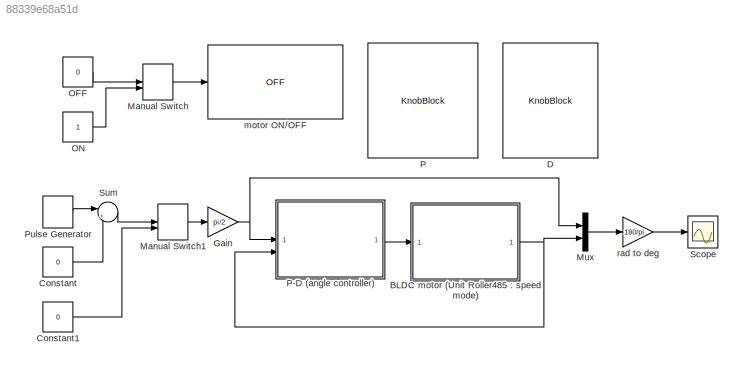
MODEL slx_88339e68a51d
KIND model
CONFIG AbsTol = auto
CONFIG EnableMultiTasking = on
CONFIG FixedStep = 0.005
CONFIG MaxStep = auto
CONFIG MinStep = auto
CONFIG RelTol = 1e-3
CONFIG SampleTimeConstraint = Unconstrained
CONFIG SolverName = ode1
CONFIG StartTime = 0.0
CONFIG StopTime = inf
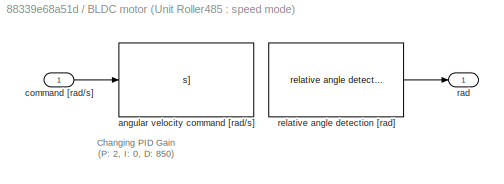
BLOCK [SubSystem] BLDC motor (Unit Roller485 : speed mode)
BLOCK [Reference] BLDC motor (Unit Roller485 : speed mode)/angular velocity command [rad//s]  REF=roller485lib/I2C Write/angular velocity command [rad//s]  (lib defined in slx_9f537789314b)
  SourceBlock = roller485lib/I2C Write/angular velocity command [rad//s]
  SourceProductName = Roller485 Library
  SourceType = angular velocity command [rad/s]
BLOCK [Inport] BLDC motor (Unit Roller485 : speed mode)/command [rad//s]
BLOCK [Outport] BLDC motor (Unit Roller485 : speed mode)/rad
BLOCK [Reference] BLDC motor (Unit Roller485 : speed mode)/relative angle detection [rad]  REF=roller485lib/I2C Read/relative angle detection [rad]  (lib defined in slx_9f537789314b)
  SourceBlock = roller485lib/I2C Read/relative angle detection [rad]
  SourceProductName = Roller485 Library
BLOCK [Constant] Constant
  Value = 0
BLOCK [Constant] Constant1
  Value = 0
BLOCK [KnobBlock] D
  LabelPosition = Hide
  NameLocation = top
  ScaleMax = 2.4
  ScaleMin = -0.8
  TickInterval = 0.8
BLOCK [Gain] Gain
  Gain = pi/2
BLOCK [ManualSwitch] Manual Switch
BLOCK [ManualSwitch] Manual Switch1
BLOCK [Mux] Mux
  DisplayOption = bar
  Inputs = 2
BLOCK [Constant] OFF
  Value = 0
BLOCK [Constant] ON
BLOCK [KnobBlock] P
  LabelPosition = Hide
  NameLocation = top
  ScaleMax = 50
  TickInterval = 10
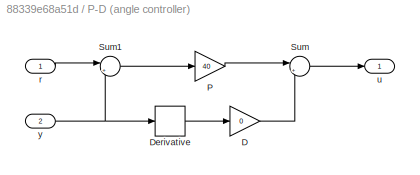
BLOCK [SubSystem] P-D (angle controller)
BLOCK [Gain] P-D (angle controller)/D
  Gain = 0
BLOCK [Derivative] P-D (angle controller)/Derivative
BLOCK [Gain] P-D (angle controller)/P
  Gain = 40
BLOCK [Sum] P-D (angle controller)/Sum
  Inputs = |+-
BLOCK [Sum] P-D (angle controller)/Sum1
  Inputs = |+-
BLOCK [Inport] P-D (angle controller)/r
BLOCK [Outport] P-D (angle controller)/u
BLOCK [Inport] P-D (angle controller)/y
  Port = 2
BLOCK [DiscretePulseGenerator] Pulse Generator
  NameLocation = top
  Period = 4
  PhaseDelay = 1
  PulseType = Time based
  PulseWidth = 50
BLOCK [Scope] Scope
  ActiveDisplayYMaximum = 135
  ActiveDisplayYMinimum = -45
  Floating = off
  GraphicalSettings = {"Style":{"BackgroundColor":[0.12941176470588237,0.12941176470588237,0.12941176470588237],"AxesColor":[0.07058823529411765,0.07058823529411765,0.07058823529411765],"LabelsColor":[0.8509803921568627,0.8509803921568627,0.8509803921568627],"PreserveColors":false,"Visible":[true,true],"LineStyle":["-","-"],"LineWidth":[1.5,1.5],"BarWidth":[0.9,0.9],"LineColor":[[1,0.9098039215686274,0.3921568627450980...<+2131ch>
  MultipleDisplayCache = [{"MaxYLimMag":10,"MaxYLimReal":135,"MinYLimMag":0,"MinYLimReal":-45,"PlotAsMagnitudePhase":false,"ShowGrid":true,"ShowLegend":false,"Title":"%<SignalLabel>","YLabel":""}]
  NumInputPorts = 1
  ScopeFrameLocation = window
  TimeSpan = 4
  Visible = on
  WasSavedAsWebScope = on
  WindowPosition = [1217.000000,204.000000,518.000000,719.000000,]
BLOCK [Sum] Sum
  Inputs = |+-
BLOCK [Reference] motor ON//OFF  REF=roller485lib/motor ON//OFF  (lib defined in slx_9f537789314b)
  SourceBlock = roller485lib/motor ON//OFF
  SourceProductName = Roller485 Library
BLOCK [Gain] rad to deg
  Gain = 180/pi
ANNOTATION BLDC motor (Unit Roller485 : speed mode): Changing PID Gain (P: 2, I: 0, D: 850)
LINE BLDC motor (Unit Roller485 : speed mode)/command [rad//s]:1 -> BLDC motor (Unit Roller485 : speed mode)/angular velocity command [rad//s]:1
LINE BLDC motor (Unit Roller485 : speed mode)/relative angle detection [rad]:1 -> BLDC motor (Unit Roller485 : speed mode)/rad:1
NET BLDC motor (Unit Roller485 : speed mode):1 -> Mux:2, P-D (angle controller):2
LINE Constant1:1 -> Manual Switch1:2
LINE Constant:1 -> Sum:2
NET Gain:1 -> Mux:1, P-D (angle controller):1
LINE Manual Switch1:1 -> Gain:1
LINE Manual Switch:1 -> motor ON//OFF:1
LINE Mux:1 -> rad to deg:1
LINE OFF:1 -> Manual Switch:1
LINE ON:1 -> Manual Switch:2
LINE P-D (angle controller)/D:1 -> P-D (angle controller)/Sum:2
LINE P-D (angle controller)/Derivative:1 -> P-D (angle controller)/D:1
LINE P-D (angle controller)/P:1 -> P-D (angle controller)/Sum:1
LINE P-D (angle controller)/Sum1:1 -> P-D (angle controller)/P:1
LINE P-D (angle controller)/Sum:1 -> P-D (angle controller)/u:1
LINE P-D (angle controller)/r:1 -> P-D (angle controller)/Sum1:1
NET P-D (angle controller)/y:1 -> P-D (angle controller)/Derivative:1, P-D (angle controller)/Sum1:2
LINE P-D (angle controller):1 -> BLDC motor (Unit Roller485 : speed mode):1
LINE Pulse Generator:1 -> Sum:1
LINE Sum:1 -> Manual Switch1:1
LINE rad to deg:1 -> Scope:1
note: NET lines group one-source signal fan-out (src -> all destinations, sorted); 1:1 wires keep LINE
